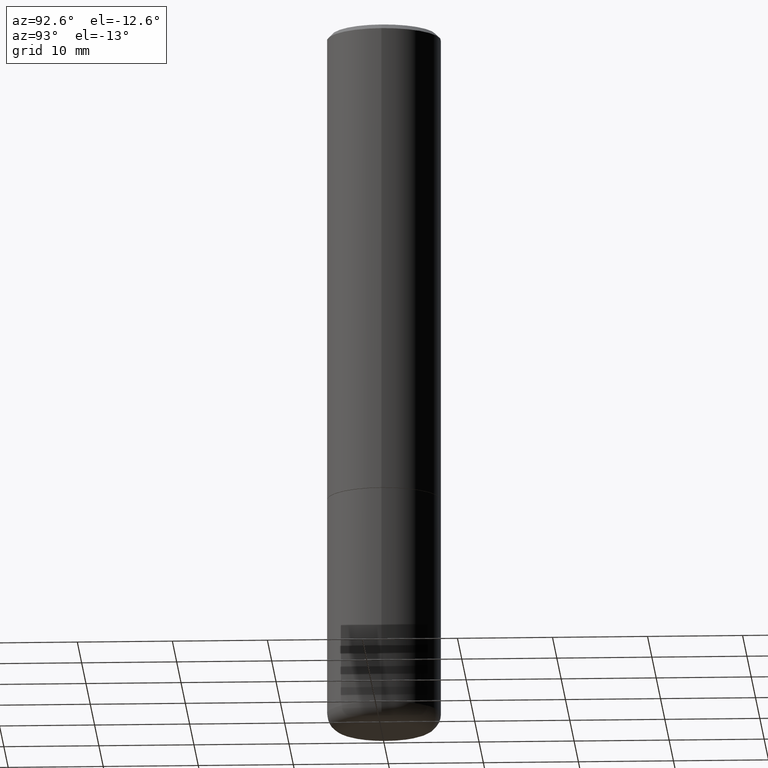
[diagram: clean part render]
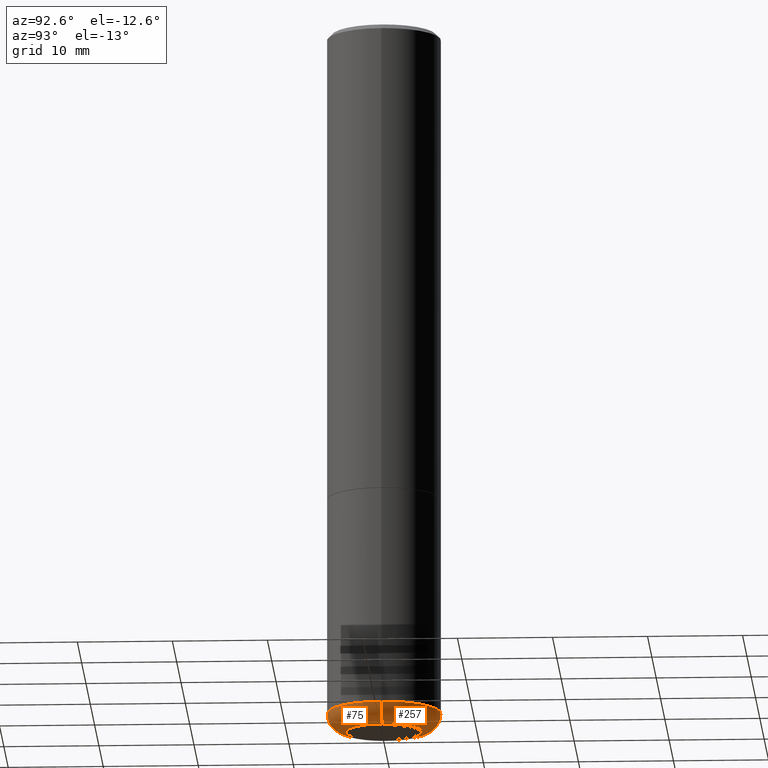
[diagram: same view with one multi-face feature highlighted, each face labeled with its STEP entity id]
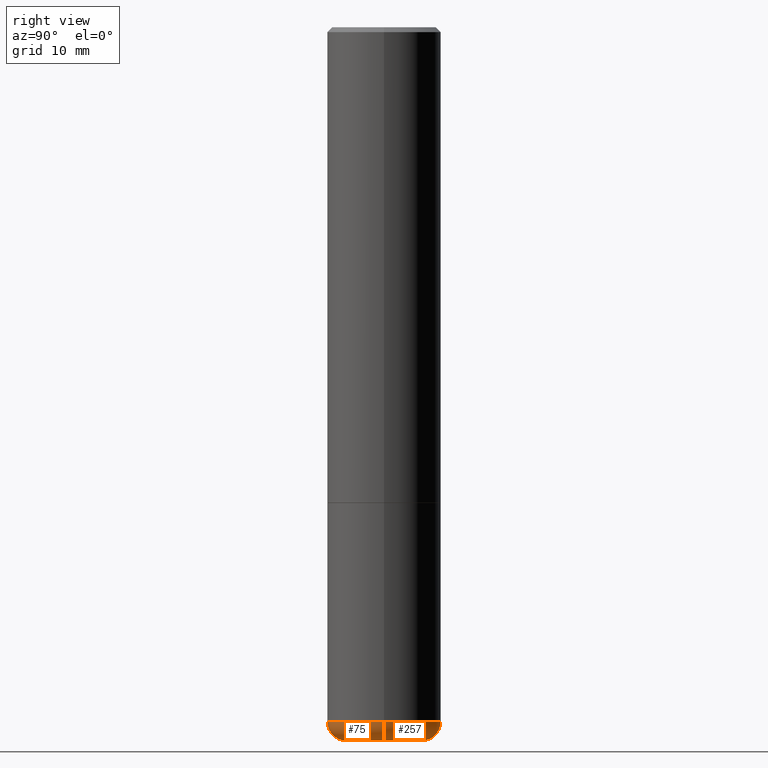
[diagram: same view with one multi-face feature highlighted, each face labeled with its STEP entity id]
A machine part, auxiliary view. The highlighted faces form ONE feature: a constant-radius fillet chain: 2 tangent blend faces with common blend radius 1.999 mm. The faces share edges in the B-rep.
A second angle (right view) of the same feature is appended — it is thin or edge-on in the first view.
Their STEP definitions:
[1] entity #75 (Torus):
#7 = CIRCLE ( 'NONE', #409, 0.07869999999999993667 ) ;
#34 = CIRCLE ( 'NONE', #199, 0.07869999999999993667 ) ;
#55 = DIRECTION ( 'NONE',  ( 1.000000000000000000, -6.982962677686265133E-15, 0.000000000000000000 ) ) ;
#58 = EDGE_CURVE ( 'NONE', #417, #309, #207, .T. ) ;
#75 = ADVANCED_FACE ( 'NONE', ( #240 ), #216, .T. ) ;
#89 = CARTESIAN_POINT ( 'NONE',  ( 7.028521895856700897E-29, -1.003486651596908519E-14, -2.874099999999999877 ) ) ;
#97 = EDGE_LOOP ( 'NONE', ( #296, #266, #392, #232 ) ) ;
#99 = DIRECTION ( 'NONE',  ( 1.000000000000000000, -6.982962677686261977E-15, 0.000000000000000000 ) ) ;
#112 = DIRECTION ( 'NONE',  ( -1.000000000000000000, 7.105427357600997914E-15, 0.000000000000000000 ) ) ;
#120 = CARTESIAN_POINT ( 'NONE',  ( -0.1575000000000000011, -8.915761707146927585E-15, -2.874099999999999877 ) ) ;
#131 = DIRECTION ( 'NONE',  ( -6.982962677686266711E-15, -1.000000000000000000, 3.491481338843145583E-15 ) ) ;
#153 = VERTEX_POINT ( 'NONE', #333 ) ;
#163 = EDGE_CURVE ( 'NONE', #153, #303, #166, .T. ) ;
#166 = CIRCLE ( 'NONE', #245, 0.1575000000000000011 ) ;
#167 = CARTESIAN_POINT ( 'NONE',  ( 7.028521895856700897E-29, -1.003486651596908519E-14, -2.874099999999999877 ) ) ;
#191 = AXIS2_PLACEMENT_3D ( 'NONE', #167, #264, #371 ) ;
#199 = AXIS2_PLACEMENT_3D ( 'NONE', #120, #374, #112 ) ;
#204 = DIRECTION ( 'NONE',  ( 1.000000000000000000, -6.982962677686275388E-15, 0.000000000000000000 ) ) ;
#207 = CIRCLE ( 'NONE', #400, 0.2361999999999999933 ) ;
#212 = CARTESIAN_POINT ( 'NONE',  ( 0.2361999999999999655, -1.168424230043858014E-14, -2.874099999999999877 ) ) ;
#216 = TOROIDAL_SURFACE ( 'NONE', #191, 0.1575000000000000011, 0.07869999999999995055 ) ;
#232 = ORIENTED_EDGE ( 'NONE', *, *, #58, .F. ) ;
#240 = FACE_OUTER_BOUND ( 'NONE', #97, .T. ) ;
#245 = AXIS2_PLACEMENT_3D ( 'NONE', #352, #354, #99 ) ;
#264 = DIRECTION ( 'NONE',  ( -2.445468806185136597E-29, 3.491481338843145583E-15, 1.000000000000000000 ) ) ;
#266 = ORIENTED_EDGE ( 'NONE', *, *, #163, .T. ) ;
#269 = CARTESIAN_POINT ( 'NONE',  ( 0.1575000000000000011, -1.113468313770467030E-14, -2.874099999999999877 ) ) ;
#296 = ORIENTED_EDGE ( 'NONE', *, *, #377, .F. ) ;
#303 = VERTEX_POINT ( 'NONE', #405 ) ;
#309 = VERTEX_POINT ( 'NONE', #212 ) ;
#310 = EDGE_CURVE ( 'NONE', #303, #309, #7, .T. ) ;
#333 = CARTESIAN_POINT ( 'NONE',  ( -0.1575000000000000011, -8.773552931308804860E-15, -2.952799999999999869 ) ) ;
#350 = CARTESIAN_POINT ( 'NONE',  ( -0.2361999999999999655, -8.356564574103728795E-15, -2.874099999999999877 ) ) ;
#352 = CARTESIAN_POINT ( 'NONE',  ( 7.220980290903470182E-29, -1.030964609733603853E-14, -2.952799999999999869 ) ) ;
#354 = DIRECTION ( 'NONE',  ( -2.445468806185136597E-29, 3.491481338843145583E-15, 1.000000000000000000 ) ) ;
#371 = DIRECTION ( 'NONE',  ( 1.000000000000000000, -6.982962677686266711E-15, 4.883557194083113462E-29 ) ) ;
#374 = DIRECTION ( 'NONE',  ( 7.105427357601001859E-15, 1.000000000000000000, -3.491481338843145583E-15 ) ) ;
#377 = EDGE_CURVE ( 'NONE', #153, #417, #34, .T. ) ;
#383 = DIRECTION ( 'NONE',  ( -2.445468806185136597E-29, 3.491481338843145583E-15, 1.000000000000000000 ) ) ;
#392 = ORIENTED_EDGE ( 'NONE', *, *, #310, .T. ) ;
#400 = AXIS2_PLACEMENT_3D ( 'NONE', #89, #383, #55 ) ;
#405 = CARTESIAN_POINT ( 'NONE',  ( 0.1575000000000000011, -1.140946271907162522E-14, -2.952799999999999869 ) ) ;
#409 = AXIS2_PLACEMENT_3D ( 'NONE', #269, #131, #204 ) ;
#417 = VERTEX_POINT ( 'NONE', #350 ) ;
[2] entity #257 (Torus):
#7 = CIRCLE ( 'NONE', #409, 0.07869999999999993667 ) ;
#9 = DIRECTION ( 'NONE',  ( -2.445468806185136597E-29, 3.491481338843145583E-15, 1.000000000000000000 ) ) ;
#34 = CIRCLE ( 'NONE', #199, 0.07869999999999993667 ) ;
#80 = FACE_OUTER_BOUND ( 'NONE', #289, .T. ) ;
#110 = EDGE_CURVE ( 'NONE', #303, #153, #260, .T. ) ;
#112 = DIRECTION ( 'NONE',  ( -1.000000000000000000, 7.105427357600997914E-15, 0.000000000000000000 ) ) ;
#113 = ORIENTED_EDGE ( 'NONE', *, *, #408, .F. ) ;
#114 = DIRECTION ( 'NONE',  ( 1.000000000000000000, -6.982962677686265133E-15, 0.000000000000000000 ) ) ;
#120 = CARTESIAN_POINT ( 'NONE',  ( -0.1575000000000000011, -8.915761707146927585E-15, -2.874099999999999877 ) ) ;
#127 = TOROIDAL_SURFACE ( 'NONE', #388, 0.1575000000000000011, 0.07869999999999995055 ) ;
#131 = DIRECTION ( 'NONE',  ( -6.982962677686266711E-15, -1.000000000000000000, 3.491481338843145583E-15 ) ) ;
#146 = AXIS2_PLACEMENT_3D ( 'NONE', #413, #179, #114 ) ;
#153 = VERTEX_POINT ( 'NONE', #333 ) ;
#176 = CARTESIAN_POINT ( 'NONE',  ( 7.028521895856700897E-29, -1.003486651596908519E-14, -2.874099999999999877 ) ) ;
#179 = DIRECTION ( 'NONE',  ( -2.445468806185136597E-29, 3.491481338843145583E-15, 1.000000000000000000 ) ) ;
#180 = AXIS2_PLACEMENT_3D ( 'NONE', #346, #283, #394 ) ;
#199 = AXIS2_PLACEMENT_3D ( 'NONE', #120, #374, #112 ) ;
#204 = DIRECTION ( 'NONE',  ( 1.000000000000000000, -6.982962677686275388E-15, 0.000000000000000000 ) ) ;
#206 = ORIENTED_EDGE ( 'NONE', *, *, #110, .T. ) ;
#212 = CARTESIAN_POINT ( 'NONE',  ( 0.2361999999999999655, -1.168424230043858014E-14, -2.874099999999999877 ) ) ;
#223 = CIRCLE ( 'NONE', #146, 0.2361999999999999933 ) ;
#257 = ADVANCED_FACE ( 'NONE', ( #80 ), #127, .T. ) ;
#260 = CIRCLE ( 'NONE', #180, 0.1575000000000000011 ) ;
#269 = CARTESIAN_POINT ( 'NONE',  ( 0.1575000000000000011, -1.113468313770467030E-14, -2.874099999999999877 ) ) ;
#273 = ORIENTED_EDGE ( 'NONE', *, *, #310, .F. ) ;
#283 = DIRECTION ( 'NONE',  ( -2.445468806185136597E-29, 3.491481338843145583E-15, 1.000000000000000000 ) ) ;
#289 = EDGE_LOOP ( 'NONE', ( #206, #396, #113, #273 ) ) ;
#303 = VERTEX_POINT ( 'NONE', #405 ) ;
#309 = VERTEX_POINT ( 'NONE', #212 ) ;
#310 = EDGE_CURVE ( 'NONE', #303, #309, #7, .T. ) ;
#333 = CARTESIAN_POINT ( 'NONE',  ( -0.1575000000000000011, -8.773552931308804860E-15, -2.952799999999999869 ) ) ;
#334 = DIRECTION ( 'NONE',  ( 1.000000000000000000, -6.982962677686266711E-15, 4.883557194083113462E-29 ) ) ;
#346 = CARTESIAN_POINT ( 'NONE',  ( 7.220980290903470182E-29, -1.030964609733603853E-14, -2.952799999999999869 ) ) ;
#350 = CARTESIAN_POINT ( 'NONE',  ( -0.2361999999999999655, -8.356564574103728795E-15, -2.874099999999999877 ) ) ;
#374 = DIRECTION ( 'NONE',  ( 7.105427357601001859E-15, 1.000000000000000000, -3.491481338843145583E-15 ) ) ;
#377 = EDGE_CURVE ( 'NONE', #153, #417, #34, .T. ) ;
#388 = AXIS2_PLACEMENT_3D ( 'NONE', #176, #9, #334 ) ;
#394 = DIRECTION ( 'NONE',  ( 1.000000000000000000, -6.982962677686261977E-15, 0.000000000000000000 ) ) ;
#396 = ORIENTED_EDGE ( 'NONE', *, *, #377, .T. ) ;
#405 = CARTESIAN_POINT ( 'NONE',  ( 0.1575000000000000011, -1.140946271907162522E-14, -2.952799999999999869 ) ) ;
#408 = EDGE_CURVE ( 'NONE', #309, #417, #223, .T. ) ;
#409 = AXIS2_PLACEMENT_3D ( 'NONE', #269, #131, #204 ) ;
#413 = CARTESIAN_POINT ( 'NONE',  ( 7.028521895856700897E-29, -1.003486651596908519E-14, -2.874099999999999877 ) ) ;
#417 = VERTEX_POINT ( 'NONE', #350 ) ;